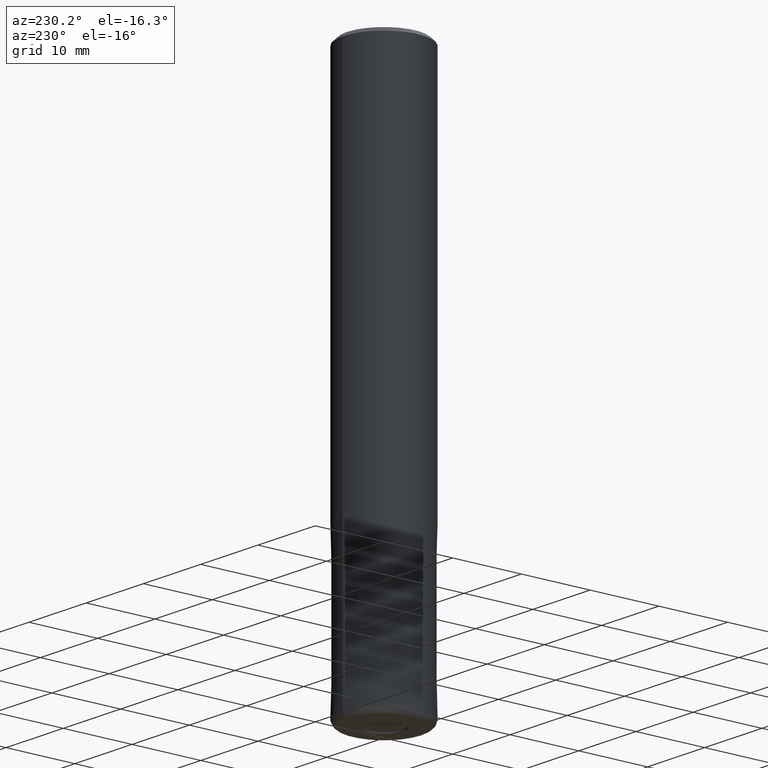
[diagram: clean part render]
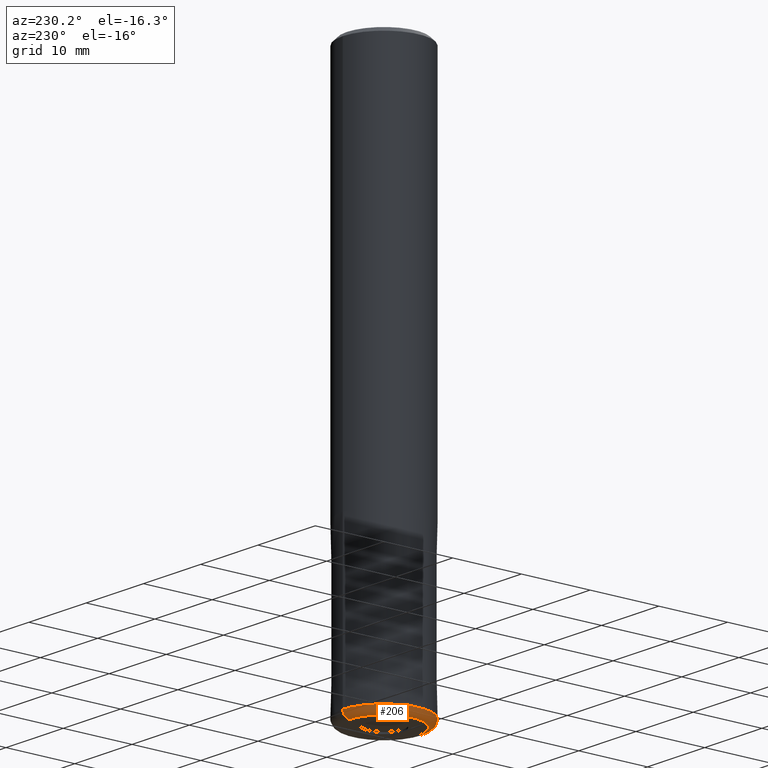
[diagram: same view with one face highlighted and labeled with its STEP entity id]
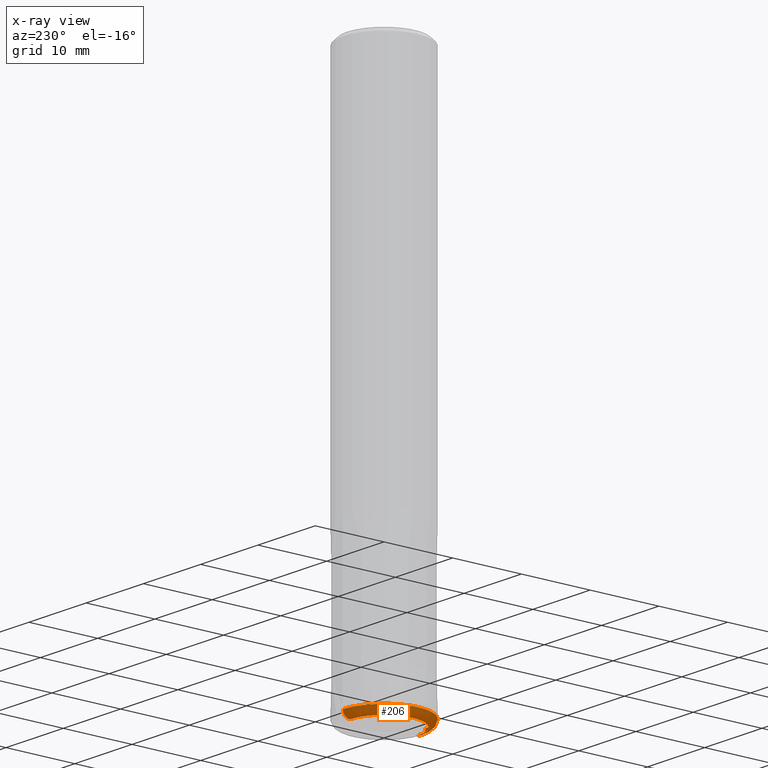
[diagram: x-ray of the same camera — body ghosted, the highlighted face saturated]
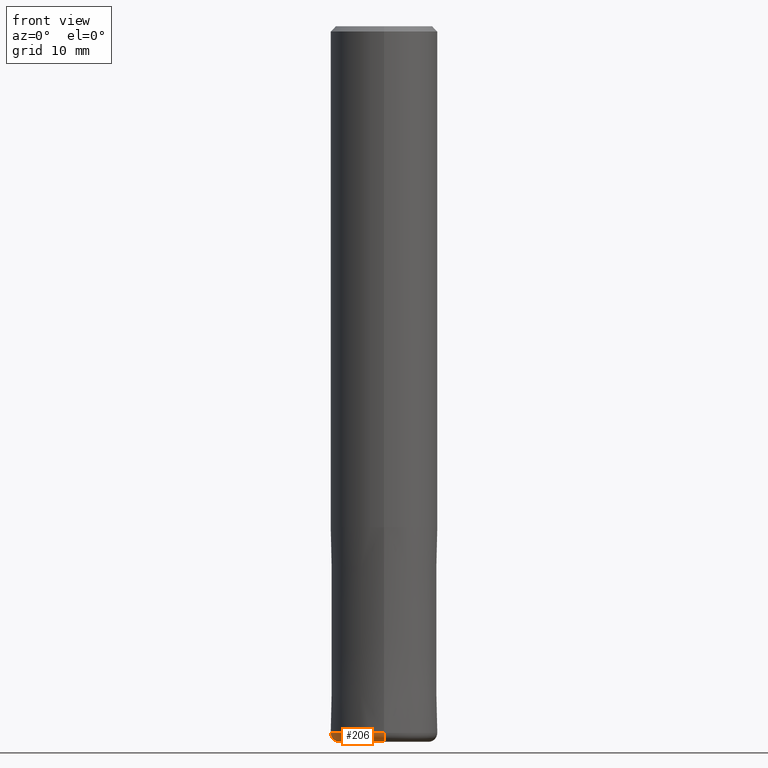
[diagram: same view with one face highlighted and labeled with its STEP entity id]
A machine part, auxiliary view. The second image highlights one B-rep face of the part: STEP entity #206.
The next image is the same camera in x-ray: the body ghosted, the highlighted face saturated — about 0% of this face is hidden behind the body in this view.
A second angle (front view) of the same face is appended — the face is thin or edge-on in the first view.
In plain terms, the highlighted toroidal blend (fillet) surface has major radius 5 mm and minor (blend) radius 1 mm.
Its self-contained STEP definition (entity closure, byte-faithful):
#128=VERTEX_POINT('',#293);
#146=VERTEX_POINT('',#314);
#150=EDGE_CURVE('',#146,#172,#319,.T.);
#156=EDGE_CURVE('',#128,#240,#325,.T.);
#172=VERTEX_POINT('',#342);
#182=EDGE_CURVE('',#172,#128,#353,.T.);
#206=ADVANCED_FACE('',(#381),#382,.T.);
#214=EDGE_CURVE('',#146,#240,#392,.T.);
#240=VERTEX_POINT('',#419);
#293=CARTESIAN_POINT('',(0.0,5.0,-80.0));
#314=CARTESIAN_POINT('',(7.34763812293426E-016,-6.0,-79.0));
#319=CIRCLE('',#503,0.999999999999989);
#325=CIRCLE('',#512,0.999999999999989);
#342=CARTESIAN_POINT('',(6.12303176911189E-016,-5.0,-80.0));
#353=CIRCLE('',#546,5.0);
#381=FACE_OUTER_BOUND('',#584,.T.);
#382=TOROIDAL_SURFACE('',#585,5.00000000000001,0.999999999999989);
#392=CIRCLE('',#598,6.0);
#419=CARTESIAN_POINT('',(0.0,6.0,-79.0));
#503=AXIS2_PLACEMENT_3D('',#717,#718,#719);
#512=AXIS2_PLACEMENT_3D('',#726,#727,#728);
#546=AXIS2_PLACEMENT_3D('',#757,#758,#759);
#584=EDGE_LOOP('',(#800,#801,#802,#803));
#585=AXIS2_PLACEMENT_3D('',#804,#805,#806);
#598=AXIS2_PLACEMENT_3D('',#821,#822,#823);
#717=CARTESIAN_POINT('',(6.1230317691119E-016,-5.00000000000001,-79.0));
#718=DIRECTION('',(1.0,1.22460635382238E-016,0.0));
#719=DIRECTION('',(1.22460635382238E-016,-1.0,-0.0));
#726=CARTESIAN_POINT('',(-6.1230317691119E-016,5.00000000000001,-79.0));
#727=DIRECTION('',(1.0,1.22460635382238E-016,0.0));
#728=DIRECTION('',(-1.22460635382238E-016,1.0,0.0));
#757=CARTESIAN_POINT('',(0.0,0.0,-80.0));
#758=DIRECTION('',(0.0,0.0,-1.0));
#759=DIRECTION('',(0.0,1.0,0.0));
#800=ORIENTED_EDGE('',*,*,#150,.F.);
#801=ORIENTED_EDGE('',*,*,#214,.T.);
#802=ORIENTED_EDGE('',*,*,#156,.F.);
#803=ORIENTED_EDGE('',*,*,#182,.F.);
#804=CARTESIAN_POINT('',(0.0,0.0,-79.0));
#805=DIRECTION('',(0.0,0.0,-1.0));
#806=DIRECTION('',(0.0,-1.0,0.0));
#821=CARTESIAN_POINT('',(0.0,0.0,-79.0));
#822=DIRECTION('',(0.0,0.0,-1.0));
#823=DIRECTION('',(0.0,1.0,0.0));